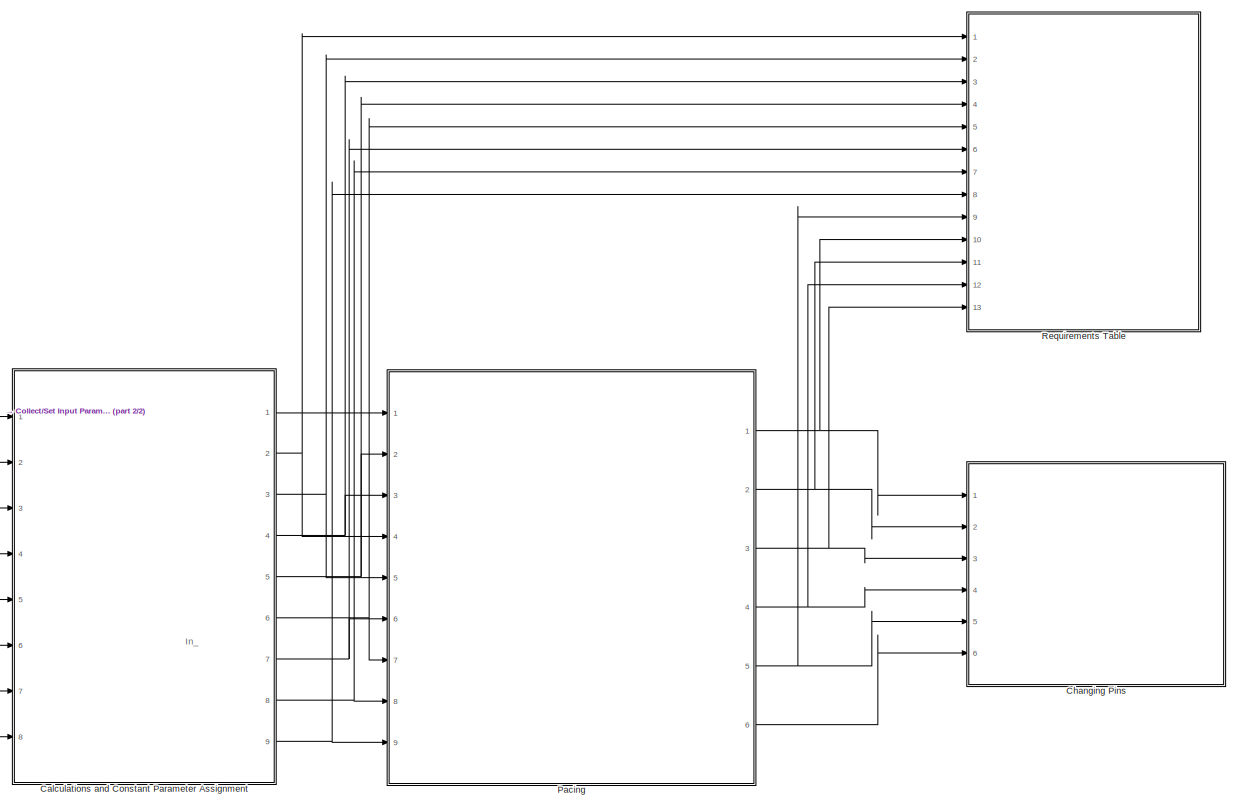
[diagram: root canvas - part 1/2, top right region]
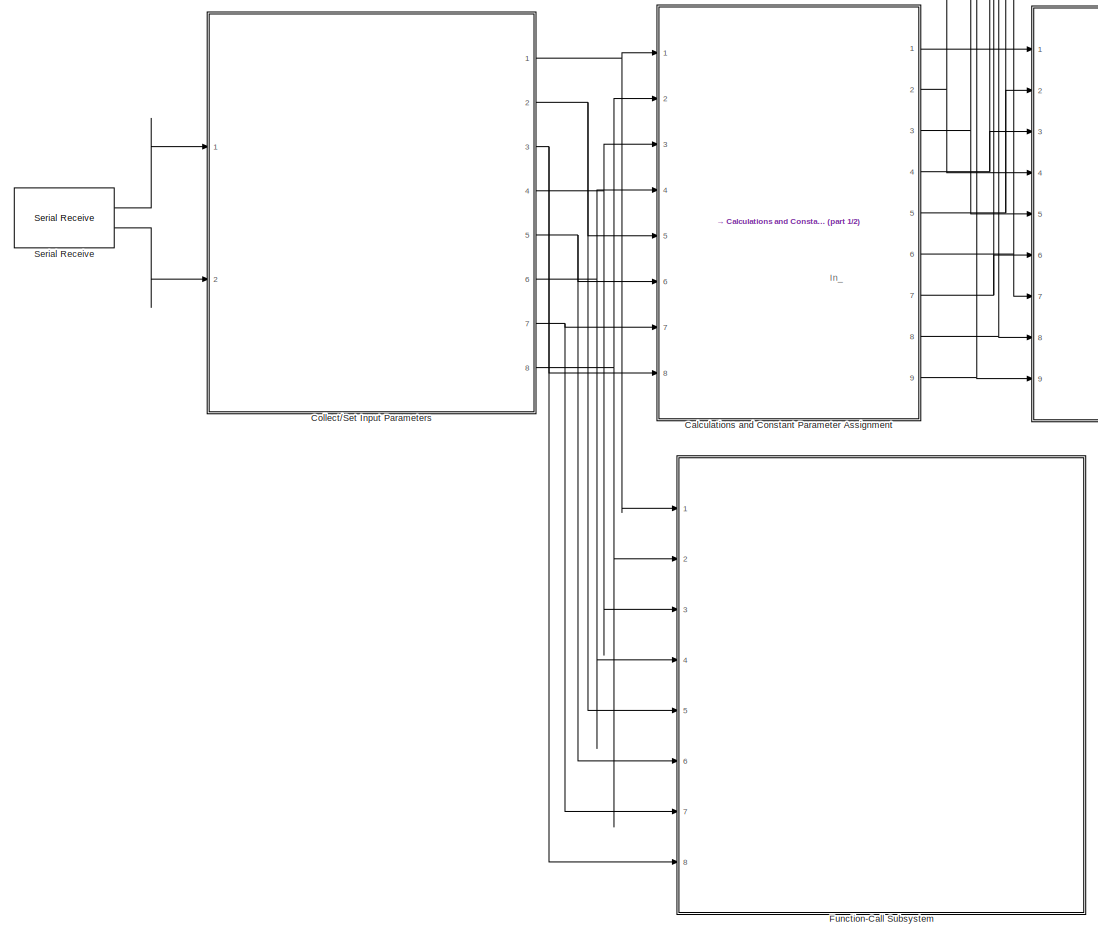
[diagram: root canvas - part 2/2, middle left region]
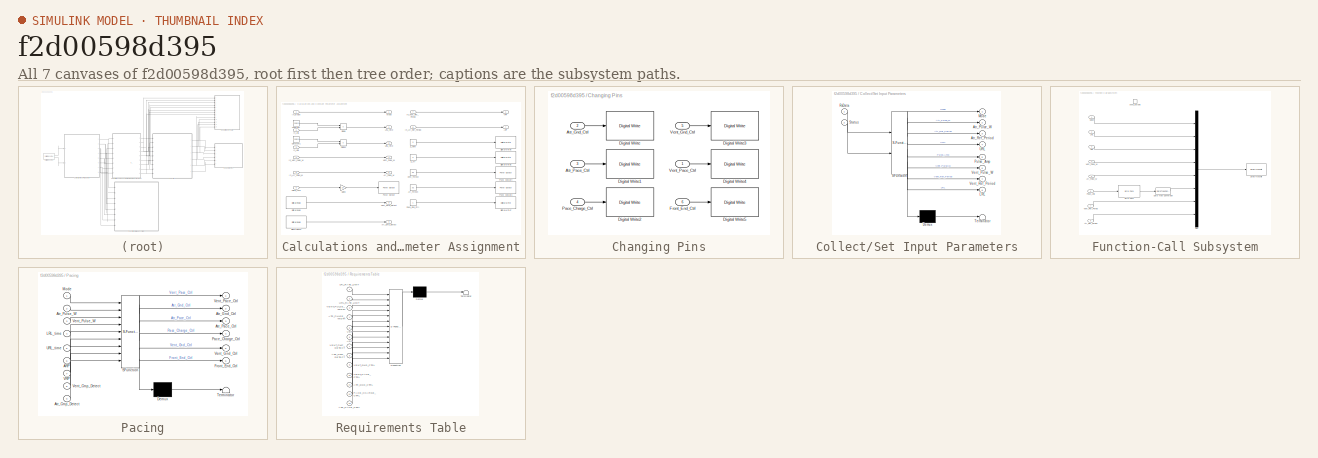
[diagram: thumbnail index - all 7 canvases of the model, root first then tree order]
MODEL slx_f2d00598d395
KIND model
CONFIG AbsTol = auto
CONFIG EnableMultiTasking = on
CONFIG FixedStep = 1e-3
CONFIG MaxStep = auto
CONFIG MinStep = auto
CONFIG RelTol = 1e-3
CONFIG SampleTimeConstraint = Unconstrained
CONFIG SolverName = FixedStepAuto
CONFIG StartTime = 0.0
CONFIG StopTime = 60
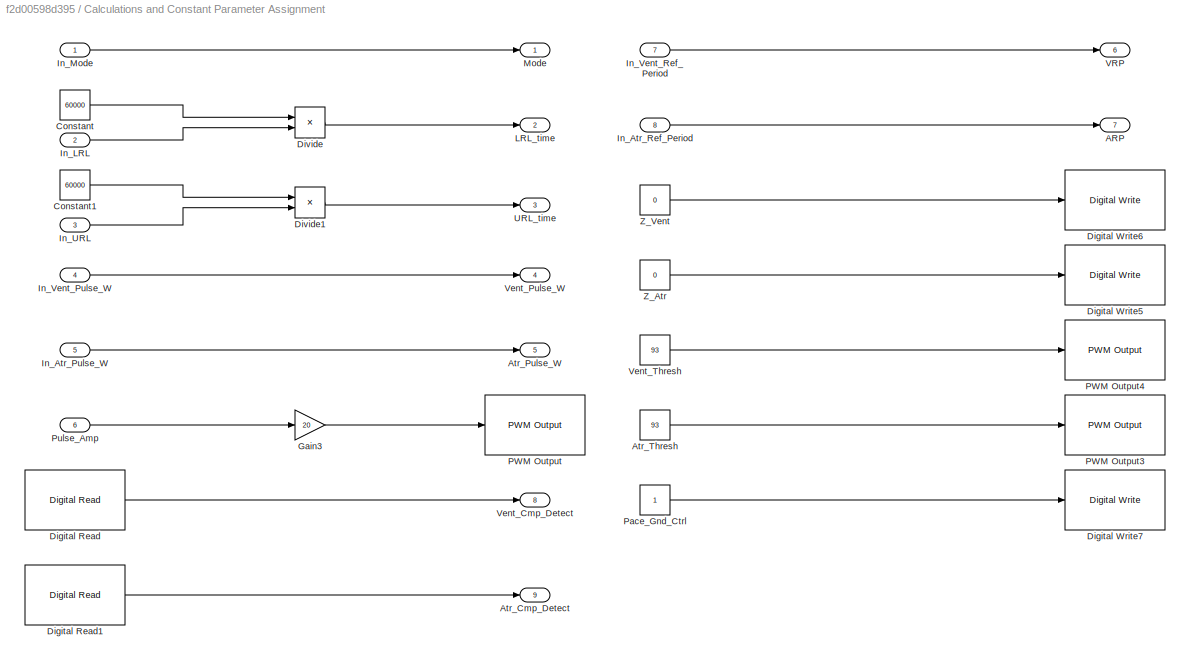
BLOCK [SubSystem] Calculations and Constant Parameter Assignment
  Ports = [8, 9]
  RequestExecContextInheritance = off
BLOCK [Outport] Calculations and Constant Parameter Assignment/ARP
  OutDataTypeStr = uint16
  Port = 7
BLOCK [Outport] Calculations and Constant Parameter Assignment/Atr_Cmp_Detect
  OutDataTypeStr = boolean
  Port = 9
BLOCK [Outport] Calculations and Constant Parameter Assignment/Atr_Pulse_W
  OutDataTypeStr = uint16
  Port = 5
BLOCK [Constant] Calculations and Constant Parameter Assignment/Atr_Thresh
  Value = 93
BLOCK [Constant] Calculations and Constant Parameter Assignment/Constant
  OutDataTypeStr = uint16
  Value = 60000
BLOCK [Constant] Calculations and Constant Parameter Assignment/Constant1
  OutDataTypeStr = uint16
  Value = 60000
BLOCK [Reference] Calculations and Constant Parameter Assignment/Digital Read  REF=frdmk64flib/Digital Read
  Ports = [0, 1]
  SourceBlock = frdmk64flib/Digital Read
  SourceProductBaseCode = EC_FRDM_K64F
  SourceType = freedomk64f.DigitalRead
BLOCK [Reference] Calculations and Constant Parameter Assignment/Digital Read1  REF=frdmk64flib/Digital Read
  Ports = [0, 1]
  SourceBlock = frdmk64flib/Digital Read
  SourceProductBaseCode = EC_FRDM_K64F
  SourceType = freedomk64f.DigitalRead
BLOCK [Reference] Calculations and Constant Parameter Assignment/Digital Write5  REF=frdmk64flib/Digital Write
  Ports = [1]
  SourceBlock = frdmk64flib/Digital Write
  SourceProductBaseCode = EC_FRDM_K64F
  SourceType = freedomk64f.DigitalWrite
BLOCK [Reference] Calculations and Constant Parameter Assignment/Digital Write6  REF=frdmk64flib/Digital Write
  Ports = [1]
  SourceBlock = frdmk64flib/Digital Write
  SourceProductBaseCode = EC_FRDM_K64F
  SourceType = freedomk64f.DigitalWrite
BLOCK [Reference] Calculations and Constant Parameter Assignment/Digital Write7  REF=frdmk64flib/Digital Write
  Ports = [1]
  SourceBlock = frdmk64flib/Digital Write
  SourceProductBaseCode = EC_FRDM_K64F
  SourceType = freedomk64f.DigitalWrite
BLOCK [Product] Calculations and Constant Parameter Assignment/Divide
  Inputs = */
  OutDataTypeStr = uint16
  Ports = [2, 1]
BLOCK [Product] Calculations and Constant Parameter Assignment/Divide1
  Inputs = */
  OutDataTypeStr = uint16
  Ports = [2, 1]
BLOCK [Gain] Calculations and Constant Parameter Assignment/Gain3
  Gain = 20
BLOCK [Inport] Calculations and Constant Parameter Assignment/In_Atr_Pulse_W
  OutDataTypeStr = uint16
  Port = 5
BLOCK [Inport] Calculations and Constant Parameter Assignment/In_Atr_Ref_Period
  OutDataTypeStr = uint16
  Port = 8
BLOCK [Inport] Calculations and Constant Parameter Assignment/In_LRL
  OutDataTypeStr = uint16
  Port = 2
BLOCK [Inport] Calculations and Constant Parameter Assignment/In_Mode
  OutDataTypeStr = uint16
BLOCK [Inport] Calculations and Constant Parameter Assignment/In_URL
  OutDataTypeStr = uint16
  Port = 3
BLOCK [Inport] Calculations and Constant Parameter Assignment/In_Vent_Pulse_W
  LockScale = on
  OutDataTypeStr = uint16
  Port = 4
BLOCK [Inport] Calculations and Constant Parameter Assignment/In_Vent_Ref_Period
  OutDataTypeStr = uint16
  Port = 7
BLOCK [Outport] Calculations and Constant Parameter Assignment/LRL_time
  OutDataTypeStr = uint16
  Port = 2
BLOCK [Outport] Calculations and Constant Parameter Assignment/Mode
  OutDataTypeStr = uint16
BLOCK [Reference] Calculations and Constant Parameter Assignment/PWM Output  REF=frdmk64flib/PWM Output
  Ports = [1]
  SourceBlock = frdmk64flib/PWM Output
  SourceProductBaseCode = EC_FRDM_K64F
  SourceType = freedomk64f.PWMOutput
BLOCK [Reference] Calculations and Constant Parameter Assignment/PWM Output3  REF=frdmk64flib/PWM Output
  Ports = [1]
  SourceBlock = frdmk64flib/PWM Output
  SourceProductBaseCode = EC_FRDM_K64F
  SourceType = freedomk64f.PWMOutput
BLOCK [Reference] Calculations and Constant Parameter Assignment/PWM Output4  REF=frdmk64flib/PWM Output
  Ports = [1]
  SourceBlock = frdmk64flib/PWM Output
  SourceProductBaseCode = EC_FRDM_K64F
  SourceType = freedomk64f.PWMOutput
BLOCK [Constant] Calculations and Constant Parameter Assignment/Pace_Gnd_Ctrl
BLOCK [Inport] Calculations and Constant Parameter Assignment/Pulse_Amp
  OutDataTypeStr = single
  Port = 6
BLOCK [Outport] Calculations and Constant Parameter Assignment/URL_time
  OutDataTypeStr = uint16
  Port = 3
BLOCK [Outport] Calculations and Constant Parameter Assignment/VRP
  OutDataTypeStr = uint16
  Port = 6
BLOCK [Outport] Calculations and Constant Parameter Assignment/Vent_Cmp_Detect
  OutDataTypeStr = boolean
  Port = 8
BLOCK [Outport] Calculations and Constant Parameter Assignment/Vent_Pulse_W
  OutDataTypeStr = uint16
  Port = 4
BLOCK [Constant] Calculations and Constant Parameter Assignment/Vent_Thresh
  Value = 93
BLOCK [Constant] Calculations and Constant Parameter Assignment/Z_Atr
  Value = 0
BLOCK [Constant] Calculations and Constant Parameter Assignment/Z_Vent
  Value = 0
BLOCK [SubSystem] Changing Pins
  Ports = [6]
  RequestExecContextInheritance = off
BLOCK [Inport] Changing Pins/Atr_Gnd_Ctrl
  Port = 2
BLOCK [Inport] Changing Pins/Atr_Pace_Ctrl
  Port = 3
BLOCK [Reference] Changing Pins/Digital Write  REF=frdmk64flib/Digital Write
  Ports = [1]
  SourceBlock = frdmk64flib/Digital Write
  SourceProductBaseCode = EC_FRDM_K64F
  SourceType = freedomk64f.DigitalWrite
BLOCK [Reference] Changing Pins/Digital Write1  REF=frdmk64flib/Digital Write
  Ports = [1]
  SourceBlock = frdmk64flib/Digital Write
  SourceProductBaseCode = EC_FRDM_K64F
  SourceType = freedomk64f.DigitalWrite
BLOCK [Reference] Changing Pins/Digital Write2  REF=frdmk64flib/Digital Write
  Ports = [1]
  SourceBlock = frdmk64flib/Digital Write
  SourceProductBaseCode = EC_FRDM_K64F
  SourceType = freedomk64f.DigitalWrite
BLOCK [Reference] Changing Pins/Digital Write3  REF=frdmk64flib/Digital Write
  Ports = [1]
  SourceBlock = frdmk64flib/Digital Write
  SourceProductBaseCode = EC_FRDM_K64F
  SourceType = freedomk64f.DigitalWrite
BLOCK [Reference] Changing Pins/Digital Write4  REF=frdmk64flib/Digital Write
  Ports = [1]
  SourceBlock = frdmk64flib/Digital Write
  SourceProductBaseCode = EC_FRDM_K64F
  SourceType = freedomk64f.DigitalWrite
BLOCK [Reference] Changing Pins/Digital Write5  REF=frdmk64flib/Digital Write
  Ports = [1]
  SourceBlock = frdmk64flib/Digital Write
  SourceProductBaseCode = EC_FRDM_K64F
  SourceType = freedomk64f.DigitalWrite
BLOCK [Inport] Changing Pins/Front_End_Ctrl
  OutDataTypeStr = boolean
  Port = 6
BLOCK [Inport] Changing Pins/Pace_Charge_Ctrl
  Port = 4
BLOCK [Inport] Changing Pins/Vent_Gnd_Ctrl
  Port = 5
BLOCK [Inport] Changing Pins/Vent_Pace_Ctrl
BLOCK [SubSystem] Collect//Set Input Parameters
  ErrorFcn = Stateflow.Translate.translate
  PermitHierarchicalResolution = ExplicitOnly
  PortSchema = {"entries":[{"content":{"sides":[{"content":{"connectorIds":["In1","In2"]},"type":"ConnectorPlacement.EquallySpacedRectSide","uuid":"dc51e4f5-5341-418f-80a9-38d3dc8e9b6e"},{"content":{"connectorIds":["Out1","Out8","Out4","Out6","Out2","Out5","Out7","Out3"],"side":"RIGHT"},"type":"ConnectorPlacement.EquallySpacedRectSide","uuid":"313c6298-b0b7-4ff0-85ba-dbaa1c18177a"},{"content":{"connectorIds":[],...<+295ch>
  Ports = [2, 8]
  RequestExecContextInheritance = off
  SFBlockType = Chart
  TreatAsAtomicUnit = on
BLOCK [Demux] Collect//Set Input Parameters/ Demux 
  Outputs = 1
  Ports = [1, 1]
BLOCK [S-Function] Collect//Set Input Parameters/ SFunction 
  EnableBusSupport = on
  FunctionName = sf_sfun
  PortCounts = [2 9]
  Ports = [2, 9]
  SFcnIsStateOwnerBlock = off
  SFunctionDeploymentMode = off
  Tag = Stateflow S-Function 3
BLOCK [Terminator] Collect//Set Input Parameters/ Terminator 
BLOCK [Outport] Collect//Set Input Parameters/Atr_Pulse_W
  Port = 2
BLOCK [Outport] Collect//Set Input Parameters/Atr_Ref_Period
  Port = 3
BLOCK [Outport] Collect//Set Input Parameters/LRL
  Port = 8
BLOCK [Outport] Collect//Set Input Parameters/Mode
BLOCK [Outport] Collect//Set Input Parameters/Pulse_Amp
  Port = 5
BLOCK [Inport] Collect//Set Input Parameters/RxData
BLOCK [Inport] Collect//Set Input Parameters/Status
  Port = 2
BLOCK [Outport] Collect//Set Input Parameters/URL
  Port = 4
BLOCK [Outport] Collect//Set Input Parameters/Vent_Pulse_W
  Port = 6
BLOCK [Outport] Collect//Set Input Parameters/Vent_Ref_Period
  Port = 7
BLOCK [SubSystem] Function-Call Subsystem
  Ports = [8, 0, 0, 1]
  RequestExecContextInheritance = off
  TreatAsAtomicUnit = on
BLOCK [Inport] Function-Call Subsystem/Atr_Pulse_W
  OutDataTypeStr = uint16
  Port = 5
BLOCK [Inport] Function-Call Subsystem/Atr_Ref_Period
  OutDataTypeStr = uint16
  Port = 8
BLOCK [Reference] Function-Call Subsystem/Byte Pack  REF=etargetslib/Byte Pack
  Ports = [1, 1]
  SourceBlock = etargetslib/Byte Pack
  SourceProductBaseCode = ME
  SourceType = Byte pack
BLOCK [DataTypeConversion] Function-Call Subsystem/Data Type Conversion
  OutDataTypeStr = uint16
  RndMeth = Floor
  SaturateOnIntegerOverflow = off
BLOCK [Inport] Function-Call Subsystem/LRL
  OutDataTypeStr = uint16
  Port = 2
BLOCK [Inport] Function-Call Subsystem/Mode
  OutDataTypeStr = uint16
BLOCK [Mux] Function-Call Subsystem/Mux
  DisplayOption = bar
  Inputs = 8
  Ports = [8, 1]
BLOCK [Inport] Function-Call Subsystem/Pulse_Amp
  OutDataTypeStr = single
  Port = 6
BLOCK [Reference] Function-Call Subsystem/Serial Transmit  REF=frdmk64flib/Serial Transmit
  Ports = [1]
  SourceBlock = frdmk64flib/Serial Transmit
  SourceProductBaseCode = EC_FRDM_K64F
  SourceType = freedomk64f.SCIWrite
BLOCK [Inport] Function-Call Subsystem/URL
  OutDataTypeStr = uint16
  Port = 3
BLOCK [Inport] Function-Call Subsystem/Vent_Pulse_W
  LockScale = on
  OutDataTypeStr = uint16
  Port = 4
BLOCK [Inport] Function-Call Subsystem/Vent_Ref_Period
  OutDataTypeStr = uint16
  Port = 7
BLOCK [TriggerPort] Function-Call Subsystem/send_params
  FunctionName = send_params
  IsSimulinkFunction = on
  Ports = []
  StatesWhenEnabling = held
  TriggerType = function-call
  VariantControl = (inherit)
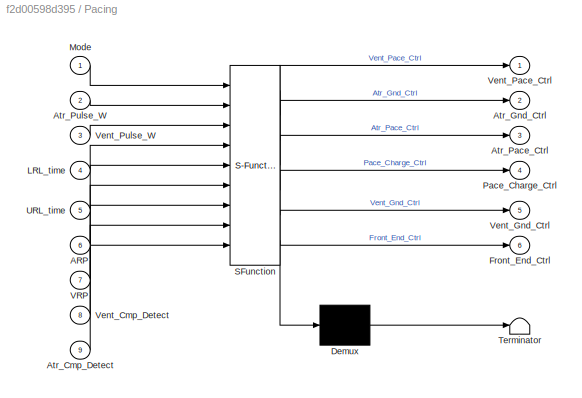
BLOCK [SubSystem] Pacing
  ErrorFcn = Stateflow.Translate.translate
  PermitHierarchicalResolution = ExplicitOnly
  PortSchema = {"entries":[{"content":{"sides":[{"content":{"connectorIds":["In1","In4","In5","In3","In2","In7","In6","In8","In9"]},"type":"ConnectorPlacement.EquallySpacedRectSide","uuid":"cbd26b3d-27cb-4744-9a6d-2e29f16e2c2e"},{"content":{"connectorIds":["Out1","Out2","Out3","Out4","Out5","Out6"],"side":"RIGHT"},"type":"ConnectorPlacement.EquallySpacedRectSide","uuid":"25c89074-e17e-4898-a31a-c42a3e343a2e"},{"...<+323ch>
  Ports = [9, 6]
  RequestExecContextInheritance = off
  SFBlockType = Chart
  TreatAsAtomicUnit = on
BLOCK [Demux] Pacing/ Demux 
  Outputs = 1
  Ports = [1, 1]
BLOCK [S-Function] Pacing/ SFunction 
  EnableBusSupport = on
  FunctionName = sf_sfun
  PortCounts = [9 7]
  Ports = [9, 7]
  SFcnIsStateOwnerBlock = off
  SFunctionDeploymentMode = off
  Tag = Stateflow S-Function 4
BLOCK [Terminator] Pacing/ Terminator 
BLOCK [Inport] Pacing/ARP
  Port = 6
BLOCK [Inport] Pacing/Atr_Cmp_Detect
  Port = 9
BLOCK [Outport] Pacing/Atr_Gnd_Ctrl
  Port = 2
BLOCK [Outport] Pacing/Atr_Pace_Ctrl
  Port = 3
BLOCK [Inport] Pacing/Atr_Pulse_W
  Port = 2
BLOCK [Outport] Pacing/Front_End_Ctrl
  Port = 6
BLOCK [Inport] Pacing/LRL_time
  Port = 4
BLOCK [Inport] Pacing/Mode
BLOCK [Outport] Pacing/Pace_Charge_Ctrl
  Port = 4
BLOCK [Inport] Pacing/URL_time
  Port = 5
BLOCK [Inport] Pacing/VRP
  Port = 7
BLOCK [Inport] Pacing/Vent_Cmp_Detect
  Port = 8
BLOCK [Outport] Pacing/Vent_Gnd_Ctrl
  Port = 5
BLOCK [Outport] Pacing/Vent_Pace_Ctrl
BLOCK [Inport] Pacing/Vent_Pulse_W
  Port = 3
BLOCK [SubSystem] Requirements Table
  ErrorFcn = Stateflow.Translate.translate
  PermitHierarchicalResolution = ExplicitOnly
  Ports = [13]
  RequestExecContextInheritance = off
  SFBlockType = Requirements Table
  TreatAsAtomicUnit = on
BLOCK [Demux] Requirements Table/ Demux 
  Outputs = 1
  Ports = [1, 1]
BLOCK [S-Function] Requirements Table/ SFunction 
  EnableBusSupport = on
  FunctionName = sf_sfun
  PortCounts = [13 1]
  Ports = [13, 1]
  SFcnIsStateOwnerBlock = off
  SFunctionDeploymentMode = off
  Tag = Stateflow S-Function 1
BLOCK [Terminator] Requirements Table/ Terminator 
BLOCK [Inport] Requirements Table/ARP
  Port = 6
BLOCK [Inport] Requirements Table/ATR_CMP_DETECT
  Port = 8
BLOCK [Inport] Requirements Table/ATR_GND_CTRL
  Port = 11
BLOCK [Inport] Requirements Table/ATR_PACE_CTRL
  Port = 13
BLOCK [Inport] Requirements Table/ATR_PULSE_WIDTH
  Port = 4
BLOCK [Inport] Requirements Table/LRL_RATE_LIMIT
BLOCK [Inport] Requirements Table/PACE_CHARGE_CTRL
  Port = 12
BLOCK [Inport] Requirements Table/URL_RATE_LIMIT
  Port = 2
BLOCK [Inport] Requirements Table/VENT_CMP_DETECT
  Port = 7
BLOCK [Inport] Requirements Table/VENT_GND_CTRL
  Port = 9
BLOCK [Inport] Requirements Table/VENT_PACE_CTRL
  Port = 10
BLOCK [Inport] Requirements Table/VENT_PULSE_WIDTH
  Port = 3
BLOCK [Inport] Requirements Table/VRP
  Port = 5
BLOCK [Reference] Serial Receive  REF=frdmk64flib/Serial Receive
  Ports = [0, 2]
  SourceBlock = frdmk64flib/Serial Receive
  SourceProductBaseCode = EC_FRDM_K64F
  SourceType = freedomk64f.SCIRead
ANNOTATION (root): In_
LINE Calculations and Constant Parameter Assignment/Atr_Thresh:1 -> Calculations and Constant Parameter Assignment/PWM Output3:1
LINE Calculations and Constant Parameter Assignment/Constant1:1 -> Calculations and Constant Parameter Assignment/Divide1:1
LINE Calculations and Constant Parameter Assignment/Constant:1 -> Calculations and Constant Parameter Assignment/Divide:1
LINE Calculations and Constant Parameter Assignment/Digital Read1:1 -> Calculations and Constant Parameter Assignment/Atr_Cmp_Detect:1
LINE Calculations and Constant Parameter Assignment/Digital Read:1 -> Calculations and Constant Parameter Assignment/Vent_Cmp_Detect:1
LINE Calculations and Constant Parameter Assignment/Divide1:1 -> Calculations and Constant Parameter Assignment/URL_time:1
LINE Calculations and Constant Parameter Assignment/Divide:1 -> Calculations and Constant Parameter Assignment/LRL_time:1
LINE Calculations and Constant Parameter Assignment/Gain3:1 -> Calculations and Constant Parameter Assignment/PWM Output:1
LINE Calculations and Constant Parameter Assignment/In_Atr_Pulse_W:1 -> Calculations and Constant Parameter Assignment/Atr_Pulse_W:1
LINE Calculations and Constant Parameter Assignment/In_Atr_Ref_Period:1 -> Calculations and Constant Parameter Assignment/ARP:1
LINE Calculations and Constant Parameter Assignment/In_LRL:1 -> Calculations and Constant Parameter Assignment/Divide:2
LINE Calculations and Constant Parameter Assignment/In_Mode:1 -> Calculations and Constant Parameter Assignment/Mode:1
LINE Calculations and Constant Parameter Assignment/In_URL:1 -> Calculations and Constant Parameter Assignment/Divide1:2
LINE Calculations and Constant Parameter Assignment/In_Vent_Pulse_W:1 -> Calculations and Constant Parameter Assignment/Vent_Pulse_W:1
LINE Calculations and Constant Parameter Assignment/In_Vent_Ref_Period:1 -> Calculations and Constant Parameter Assignment/VRP:1
LINE Calculations and Constant Parameter Assignment/Pace_Gnd_Ctrl:1 -> Calculations and Constant Parameter Assignment/Digital Write7:1
LINE Calculations and Constant Parameter Assignment/Pulse_Amp:1 -> Calculations and Constant Parameter Assignment/Gain3:1
LINE Calculations and Constant Parameter Assignment/Vent_Thresh:1 -> Calculations and Constant Parameter Assignment/PWM Output4:1
LINE Calculations and Constant Parameter Assignment/Z_Atr:1 -> Calculations and Constant Parameter Assignment/Digital Write5:1
LINE Calculations and Constant Parameter Assignment/Z_Vent:1 -> Calculations and Constant Parameter Assignment/Digital Write6:1
LINE Calculations and Constant Parameter Assignment:1 -> Pacing:1
NET Calculations and Constant Parameter Assignment:2 -> Pacing:4, Requirements Table:1
NET Calculations and Constant Parameter Assignment:3 -> Pacing:5, Requirements Table:2
NET Calculations and Constant Parameter Assignment:4 -> Pacing:3, Requirements Table:3
NET Calculations and Constant Parameter Assignment:5 -> Pacing:2, Requirements Table:4
NET Calculations and Constant Parameter Assignment:6 -> Pacing:7, Requirements Table:5
NET Calculations and Constant Parameter Assignment:7 -> Pacing:6, Requirements Table:6
NET Calculations and Constant Parameter Assignment:8 -> Pacing:8, Requirements Table:7
NET Calculations and Constant Parameter Assignment:9 -> Pacing:9, Requirements Table:8
LINE Changing Pins/Atr_Gnd_Ctrl:1 -> Changing Pins/Digital Write:1
LINE Changing Pins/Atr_Pace_Ctrl:1 -> Changing Pins/Digital Write1:1
LINE Changing Pins/Front_End_Ctrl:1 -> Changing Pins/Digital Write5:1
LINE Changing Pins/Pace_Charge_Ctrl:1 -> Changing Pins/Digital Write2:1
LINE Changing Pins/Vent_Gnd_Ctrl:1 -> Changing Pins/Digital Write3:1
LINE Changing Pins/Vent_Pace_Ctrl:1 -> Changing Pins/Digital Write4:1
NET Collect//Set Input Parameters:1 -> Calculations and Constant Parameter Assignment:1, Function-Call Subsystem:1
NET Collect//Set Input Parameters:2 -> Calculations and Constant Parameter Assignment:5, Function-Call Subsystem:5
NET Collect//Set Input Parameters:3 -> Calculations and Constant Parameter Assignment:8, Function-Call Subsystem:8
NET Collect//Set Input Parameters:4 -> Calculations and Constant Parameter Assignment:3, Function-Call Subsystem:3
NET Collect//Set Input Parameters:5 -> Calculations and Constant Parameter Assignment:6, Function-Call Subsystem:6
NET Collect//Set Input Parameters:6 -> Calculations and Constant Parameter Assignment:4, Function-Call Subsystem:4
NET Collect//Set Input Parameters:7 -> Calculations and Constant Parameter Assignment:7, Function-Call Subsystem:7
NET Collect//Set Input Parameters:8 -> Calculations and Constant Parameter Assignment:2, Function-Call Subsystem:2
LINE Function-Call Subsystem/Atr_Pulse_W:1 -> Function-Call Subsystem/Mux:5
LINE Function-Call Subsystem/Atr_Ref_Period:1 -> Function-Call Subsystem/Mux:8
LINE Function-Call Subsystem/Byte Pack:1 -> Function-Call Subsystem/Data Type Conversion:1
LINE Function-Call Subsystem/Data Type Conversion:1 -> Function-Call Subsystem/Mux:6
LINE Function-Call Subsystem/LRL:1 -> Function-Call Subsystem/Mux:2
LINE Function-Call Subsystem/Mode:1 -> Function-Call Subsystem/Mux:1
LINE Function-Call Subsystem/Mux:1 -> Function-Call Subsystem/Serial Transmit:1
LINE Function-Call Subsystem/Pulse_Amp:1 -> Function-Call Subsystem/Byte Pack:1
LINE Function-Call Subsystem/URL:1 -> Function-Call Subsystem/Mux:3
LINE Function-Call Subsystem/Vent_Pulse_W:1 -> Function-Call Subsystem/Mux:4
LINE Function-Call Subsystem/Vent_Ref_Period:1 -> Function-Call Subsystem/Mux:7
NET Pacing:1 -> Changing Pins:1, Requirements Table:10
NET Pacing:2 -> Changing Pins:2, Requirements Table:11
NET Pacing:3 -> Changing Pins:3, Requirements Table:13
NET Pacing:4 -> Changing Pins:4, Requirements Table:12
NET Pacing:5 -> Changing Pins:5, Requirements Table:9
LINE Pacing:6 -> Changing Pins:6
LINE Serial Receive:1 -> Collect//Set Input Parameters:1
LINE Serial Receive:2 -> Collect//Set Input Parameters:2
note: NET lines group one-source signal fan-out (src -> all destinations, sorted); 1:1 wires keep LINE
CHART Requirements Table states=0 transitions=158
CHART Collect//Set Input Parameters states=3 transitions=7
  STATE_LABEL "Input_Parameters\nentry:\nMode = typecast(RxData(2:3),'uint16')\nLRL = typecast(RxData(4:5),'uint16')\nURL = typecast(RxData(6:7),'uint16')\nVent_Pulse_W = typecast(RxData(8:9),'uint16')\nAtr_Pulse_W =  typecast(RxData(10:11),'uint16')\nPulse_Amp = typecast(RxData(12:15),'single');\nVent_Ref_Period = typecast(RxData(16:17),'uint16');\nAtr_Ref_Period = typecast(RxData(18:19),'uint16');\n"
  STATE_LABEL 'Wait_For_Transmission\n\n'
  STATE_LABEL 'ECHO_PARAM\nentry:\nsend_params();'
CHART Pacing states=11 transitions=21
  STATE_LABEL 'AAI_Refractory_Period\nentry:\nFront_End_Ctrl = false;\nAtr_Gnd_Ctrl = true;\nAtr_Pace_Ctrl = false;\nPace_Charge_Ctrl = true;\nFront_End_Ctrl = true;\nSensing_Pace_Cycle = LRL_time - ARP - Atr_Pulse_W;\n'
  STATE_LABEL 'AAI_Charge\nentry:\nAtr_Gnd_Ctrl = true;\nAtr_Pace_Ctrl = false;\nVent_Pace_Ctrl = false;\nVent_Gnd_Ctrl = false;\nPace_Charge_Ctrl = true;\nSensing_Pace_Cycle = LRL_time - ARP - Atr_Pulse_W;\nFront_End_Ctrl = true;\n'
  STATE_LABEL 'AAI_Pace\nentry:\nAtr_Gnd_Ctrl = false;\nAtr_Pace_Ctrl = true;\nPace_Charge_Ctrl = false;\n'
  STATE_LABEL 'Initial_State\n'
  STATE_LABEL 'VOO_Charge\nentry:\nVent_Pace_Ctrl = false;\nVent_Gnd_Ctrl = true;\nAtr_Gnd_Ctrl = false;\nAtr_Pace_Ctrl = false;\nFront_End_Ctrl = false;\nPace_Charge_Ctrl = true;\n'
  STATE_LABEL 'VOO_Discharge\nentry:\nVent_Pace_Ctrl = true;\nVent_Gnd_Ctrl = false;\nPace_Charge_Ctrl = false;\n'
  STATE_LABEL 'AOO_Charge\nentry:\nAtr_Gnd_Ctrl = true;\nAtr_Pace_Ctrl = false;\nVent_Pace_Ctrl = false;\nVent_Gnd_Ctrl = false;\nFront_End_Ctrl = false;\nPace_Charge_Ctrl = true;\n'
  STATE_LABEL 'AOO_Discharge\nentry:\nAtr_Gnd_Ctrl = false;\nAtr_Pace_Ctrl = true;\nPace_Charge_Ctrl = false;'
  STATE_LABEL 'VVI_Charge\nentry:\nVent_Gnd_Ctrl = true;\nVent_Pace_Ctrl = false;\nAtr_Gnd_Ctrl = false;\nAtr_Pace_Ctrl = false;\nPace_Charge_Ctrl = true;\nSensing_Pace_Cycle = LRL_time - VRP - Vent_Pulse_W;\nFront_End_Ctrl = true;\n'
  STATE_LABEL 'VVI_Pace\nentry:\nVent_Gnd_Ctrl = false;\nVent_Pace_Ctrl = true;\nPace_Charge_Ctrl = false;\n'
  STATE_LABEL 'VVI_Refractory_Period\nentry:\nFront_End_Ctrl = false;\nVent_Gnd_Ctrl = true;\nVent_Pace_Ctrl = false;\nPace_Charge_Ctrl = true;\nFront_End_Ctrl = true;\nSensing_Pace_Cycle = LRL_time - VRP - Vent_Pulse_W;\n'
CHART  states=0 transitions=0
CHART  states=0 transitions=0
CHART  states=0 transitions=0
